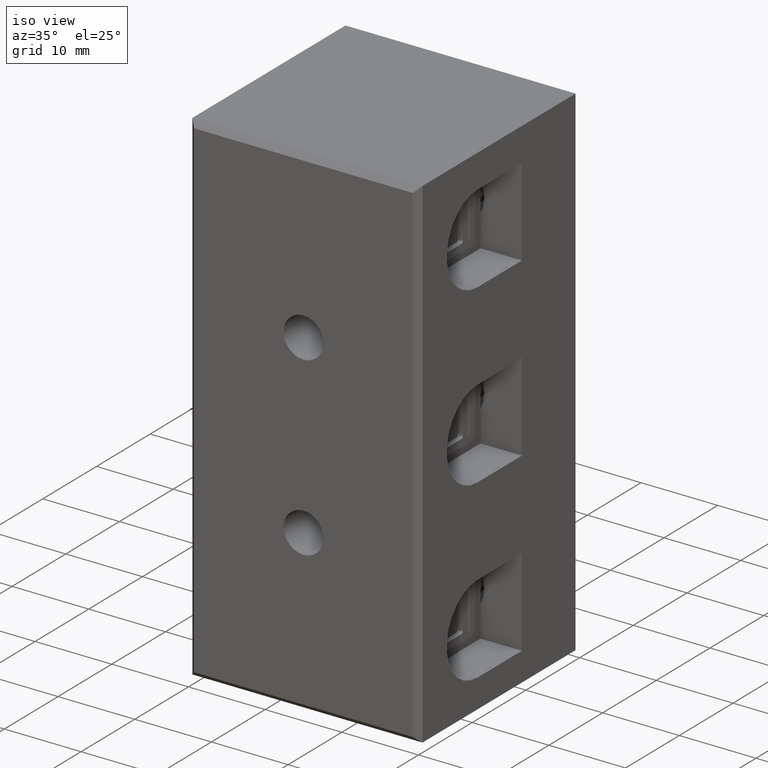
[diagram: clean part render]
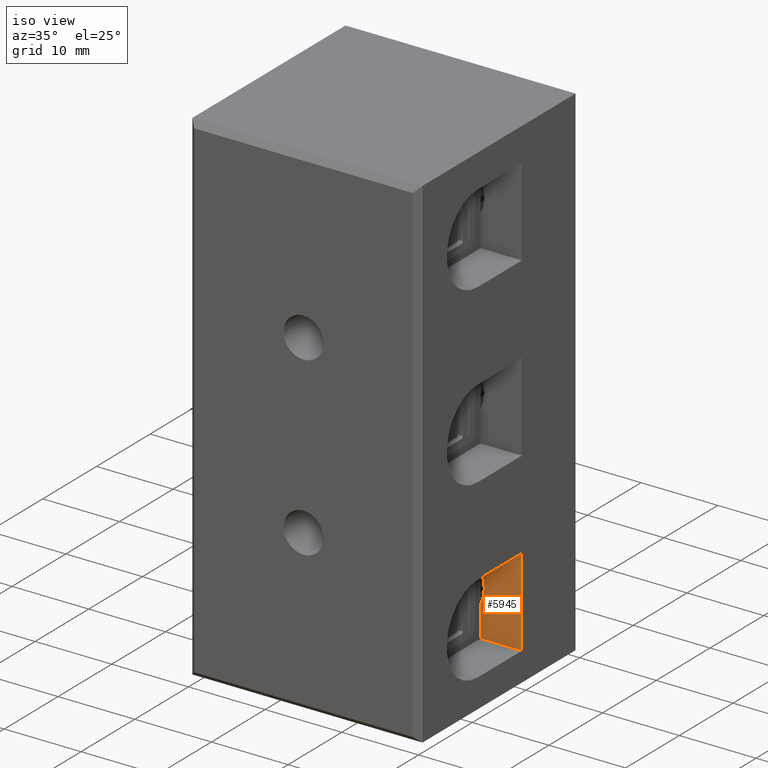
[diagram: same view with one face highlighted and labeled with its STEP entity id]
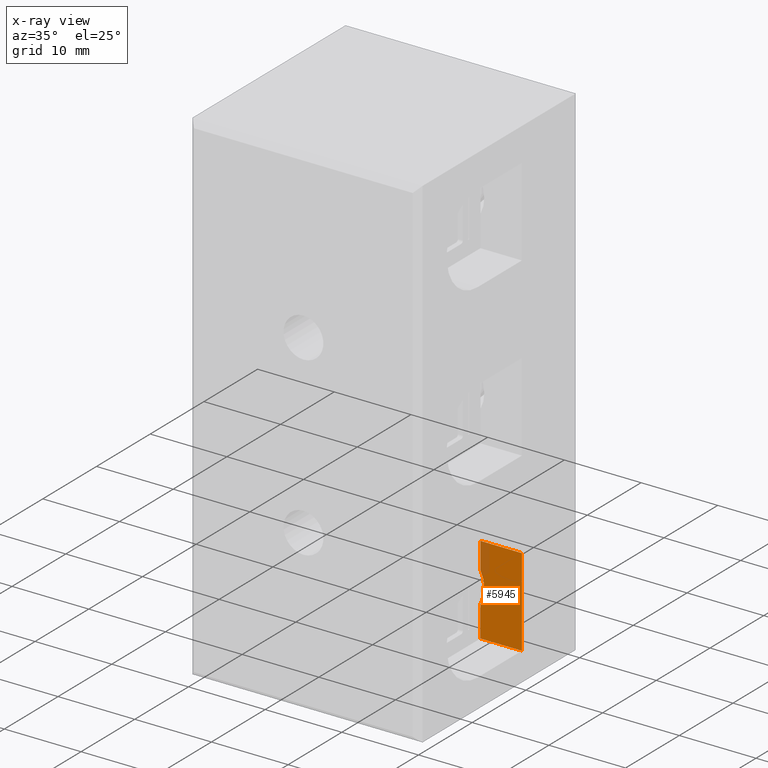
[diagram: x-ray of the same camera — body ghosted, the highlighted face saturated]
A machine part, iso view. The second image highlights one B-rep face of the part: STEP entity #5945.
The next image is the same camera in x-ray: the body ghosted, the highlighted face saturated — about 7% of this face is hidden behind the body in this view.
In plain terms, the highlighted planar face has unit normal (0, 1, 0).
Its self-contained STEP definition (entity closure, byte-faithful):
#122 = DIRECTION ( 'NONE',  ( 0.0000000000000000000, -0.0000000000000000000, 1.000000000000000000 ) ) ;
#126 = DIRECTION ( 'NONE',  ( -1.000000000000000000, -0.0000000000000000000, 1.224646799147353200E-016 ) ) ;
#128 = CARTESIAN_POINT ( 'NONE',  ( 24.60000000000016500, 19.24999999999999600, 3.749999999999990700 ) ) ;
#132 = CARTESIAN_POINT ( 'NONE',  ( 74.00000000000001400, 19.24999999999999600, 15.24999999999999100 ) ) ;
#152 = LINE ( 'NONE', #132, #9191 ) ;
#157 = LINE ( 'NONE', #128, #9181 ) ;
#243 = LINE ( 'NONE', #261, #9295 ) ;
#261 = CARTESIAN_POINT ( 'NONE',  ( 74.00000000000001400, 19.24999999999999600, 3.749999999999990700 ) ) ;
#262 = CARTESIAN_POINT ( 'NONE',  ( 30.00000000000000000, 19.24999999999999600, 0.0000000000000000000 ) ) ;
#263 = DIRECTION ( 'NONE',  ( 1.057758217059028900E-016, 0.0000000000000000000, 1.000000000000000000 ) ) ;
#278 = LINE ( 'NONE', #262, #9330 ) ;
#282 = DIRECTION ( 'NONE',  ( 1.000000000000000000, -0.0000000000000000000, -1.224646799147353200E-016 ) ) ;
#1514 = PLANE ( 'NONE',  #2697 ) ;
#1517 = FACE_OUTER_BOUND ( 'NONE', #8575, .T. ) ;
#1535 = DIRECTION ( 'NONE',  ( 0.0000000000000000000, -0.0000000000000000000, 1.000000000000000000 ) ) ;
#1546 = CARTESIAN_POINT ( 'NONE',  ( 74.00000000000001400, 19.24999999999999600, 3.749999999999990700 ) ) ;
#1547 = DIRECTION ( 'NONE',  ( 0.0000000000000000000, 1.000000000000000000, 0.0000000000000000000 ) ) ;
#2697 = AXIS2_PLACEMENT_3D ( 'NONE', #1546, #1547, #1535 ) ;
#3350 = ORIENTED_EDGE ( 'NONE', *, *, #7555, .T. ) ;
#3375 = ORIENTED_EDGE ( 'NONE', *, *, #7455, .F. ) ;
#3379 = ORIENTED_EDGE ( 'NONE', *, *, #7471, .F. ) ;
#3396 = ORIENTED_EDGE ( 'NONE', *, *, #7552, .T. ) ;
#3424 = ORIENTED_EDGE ( 'NONE', *, *, #7510, .F. ) ;
#3461 = ORIENTED_EDGE ( 'NONE', *, *, #7512, .T. ) ;
#4510 = VERTEX_POINT ( 'NONE', #8926 ) ;
#4555 = VERTEX_POINT ( 'NONE', #8976 ) ;
#4560 = VERTEX_POINT ( 'NONE', #8935 ) ;
#4575 = VERTEX_POINT ( 'NONE', #8962 ) ;
#4592 = VERTEX_POINT ( 'NONE', #8967 ) ;
#4599 = VERTEX_POINT ( 'NONE', #9006 ) ;
#5471 = LINE ( 'NONE', #5487, #8964 ) ;
#5473 = DIRECTION ( 'NONE',  ( 0.0000000000000000000, -0.0000000000000000000, 1.000000000000000000 ) ) ;
#5487 = CARTESIAN_POINT ( 'NONE',  ( 24.60000000000017200, 19.24999999999999600, 3.749999999999990700 ) ) ;
#5549 = CARTESIAN_POINT ( 'NONE',  ( 20.85000000000000900, 19.24999999999999600, 9.800000000000006000 ) ) ;
#5555 = DIRECTION ( 'NONE',  ( -0.0000000000000000000, -1.000000000000000000, -0.0000000000000000000 ) ) ;
#5566 = DIRECTION ( 'NONE',  ( -1.632680918566407400E-015, 0.0000000000000000000, 1.000000000000000000 ) ) ;
#5945 = ADVANCED_FACE ( 'NONE', ( #1517 ), #1514, .F. ) ;
#7455 = EDGE_CURVE ( 'NONE', #4510, #4560, #5471, .T. ) ;
#7471 = EDGE_CURVE ( 'NONE', #4599, #4510, #8995, .T. ) ;
#7510 = EDGE_CURVE ( 'NONE', #4555, #4599, #157, .T. ) ;
#7512 = EDGE_CURVE ( 'NONE', #4592, #4560, #152, .T. ) ;
#7552 = EDGE_CURVE ( 'NONE', #4555, #4575, #243, .T. ) ;
#7555 = EDGE_CURVE ( 'NONE', #4575, #4592, #278, .T. ) ;
#8575 = EDGE_LOOP ( 'NONE', ( #3375, #3379, #3424, #3396, #3350, #3461 ) ) ;
#8926 = CARTESIAN_POINT ( 'NONE',  ( 24.60000000000017200, 19.24999999999999600, 11.79999999999970600 ) ) ;
#8935 = CARTESIAN_POINT ( 'NONE',  ( 24.60000000000016800, 19.24999999999999600, 15.24999999999999800 ) ) ;
#8962 = CARTESIAN_POINT ( 'NONE',  ( 30.00000000000000000, 19.24999999999999600, 3.749999999999995100 ) ) ;
#8964 = VECTOR ( 'NONE', #5473, 1000.000000000000000 ) ;
#8967 = CARTESIAN_POINT ( 'NONE',  ( 30.00000000000000000, 19.24999999999999600, 15.24999999999999500 ) ) ;
#8976 = CARTESIAN_POINT ( 'NONE',  ( 24.60000000000016500, 19.24999999999999600, 3.749999999999996400 ) ) ;
#8995 = CIRCLE ( 'NONE', #9065, 4.249999999999998200 ) ;
#9006 = CARTESIAN_POINT ( 'NONE',  ( 24.60000000000017200, 19.24999999999999600, 7.800000000000307100 ) ) ;
#9065 = AXIS2_PLACEMENT_3D ( 'NONE', #5549, #5555, #5566 ) ;
#9181 = VECTOR ( 'NONE', #122, 1000.000000000000000 ) ;
#9191 = VECTOR ( 'NONE', #126, 1000.000000000000000 ) ;
#9295 = VECTOR ( 'NONE', #282, 1000.000000000000000 ) ;
#9330 = VECTOR ( 'NONE', #263, 1000.000000000000000 ) ;